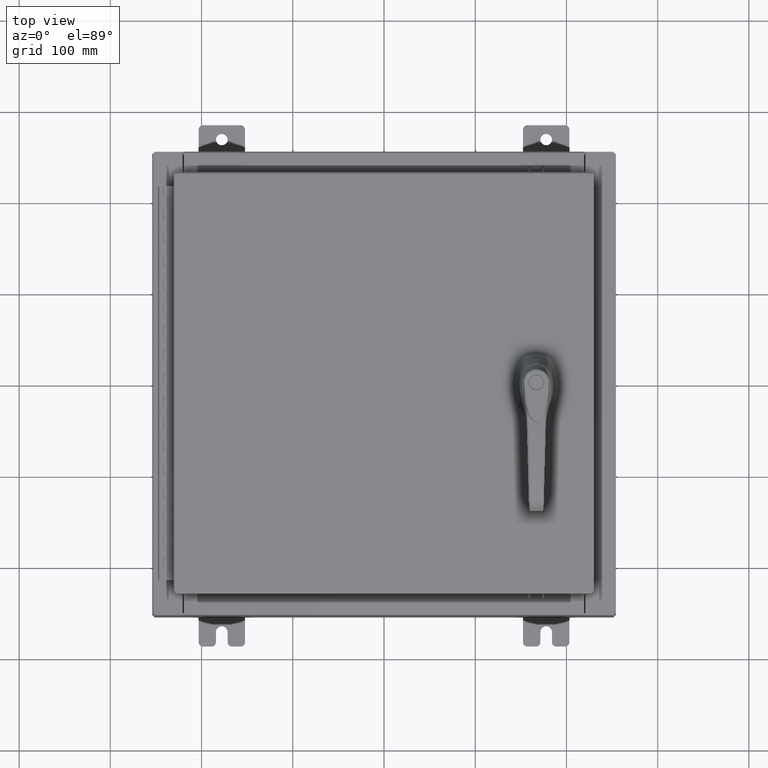
[diagram: clean part render]
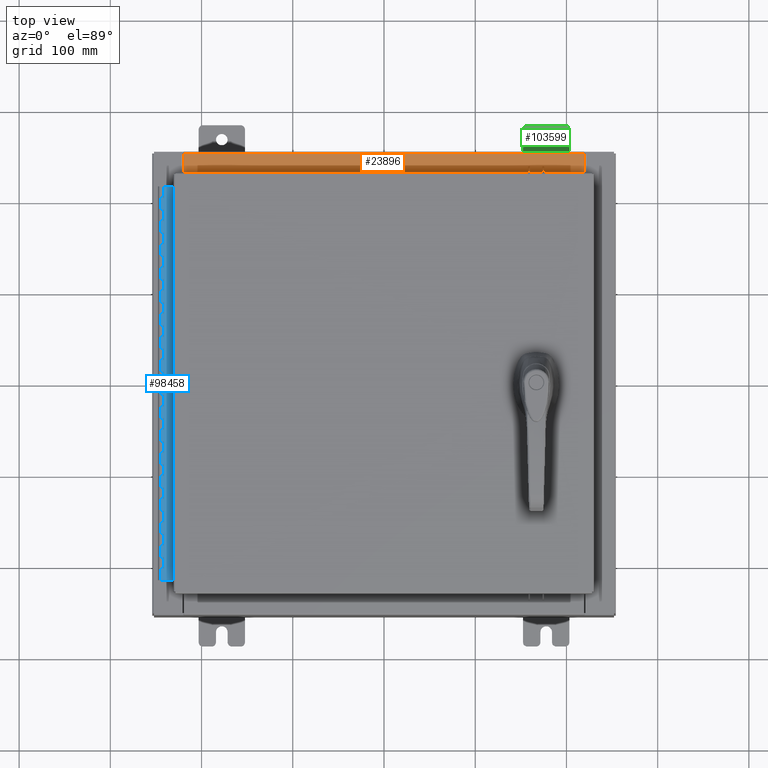
[diagram: same view with three faces highlighted in distinct colors, each labeled with its STEP entity id]
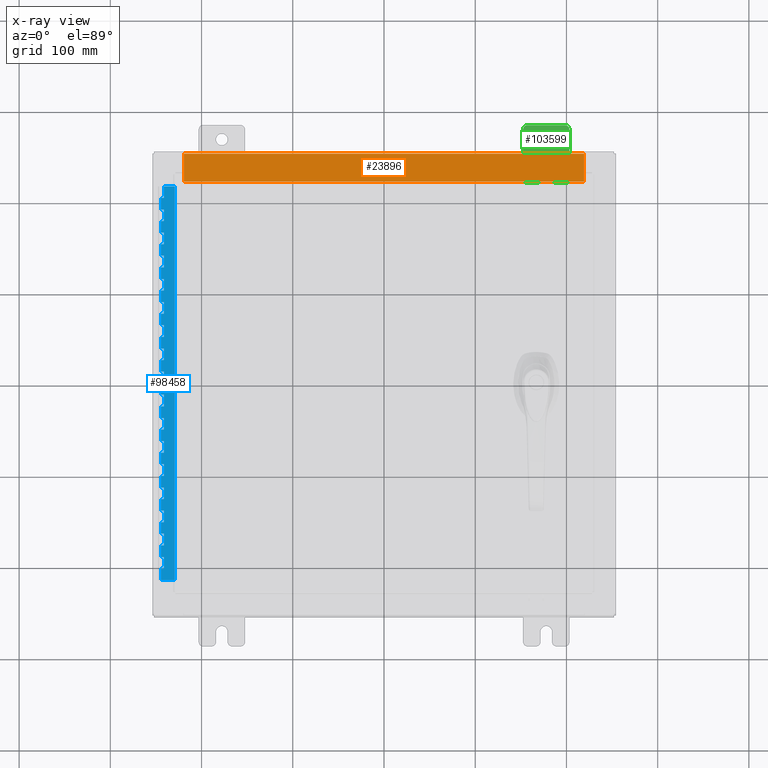
[diagram: x-ray of the same camera — body ghosted, the three highlighted faces saturated]
A machine part, top view with three faces highlighted in distinct colors.
The next image is the same camera in x-ray (body ghosted, the three faces saturated) — at least one of them is partly hidden behind the body in this view.
Their STEP definitions:

[orange] entity #23896 — the highlighted planar face has unit normal (0, 0, 1).
#1085 = FACE_OUTER_BOUND ( 'NONE', #47166, .T. ) ;
#1413 = VERTEX_POINT ( 'NONE', #47697 ) ;
#8284 = VECTOR ( 'NONE', #61445, 39.37007874015748100 ) ;
#10311 = CARTESIAN_POINT ( 'NONE',  ( -8.637200000000000000, -0.07469999999999973900, 3.000000000000000900 ) ) ;
#12944 = EDGE_CURVE ( 'NONE', #34291, #15818, #69920, .T. ) ;
#13962 = CARTESIAN_POINT ( 'NONE',  ( 8.637200000000000000, -1.287299999999999900, 3.000000000000005300 ) ) ;
#14028 = PLANE ( 'NONE',  #63778 ) ;
#14856 = ORIENTED_EDGE ( 'NONE', *, *, #12944, .T. ) ;
#15818 = VERTEX_POINT ( 'NONE', #99279 ) ;
#18794 = VECTOR ( 'NONE', #73695, 39.37007874015748100 ) ;
#22649 = DIRECTION ( 'NONE',  ( 0.0000000000000000000, 3.566381192773190000E-015, 1.000000000000000000 ) ) ;
#23896 = ADVANCED_FACE ( 'NONE', ( #1085 ), #14028, .T. ) ;
#31027 = CARTESIAN_POINT ( 'NONE',  ( -2.773851121247453900E-018, -0.08770000000000000000, 3.000000000000001300 ) ) ;
#31046 = LINE ( 'NONE', #10311, #8284 ) ;
#33048 = EDGE_CURVE ( 'NONE', #47662, #15818, #31046, .T. ) ;
#34291 = VERTEX_POINT ( 'NONE', #76085 ) ;
#36677 = LINE ( 'NONE', #85203, #74045 ) ;
#42161 = ORIENTED_EDGE ( 'NONE', *, *, #33048, .F. ) ;
#46929 = CARTESIAN_POINT ( 'NONE',  ( -8.637200000000000000, -1.287299999999999200, 3.000000000000005300 ) ) ;
#47166 = EDGE_LOOP ( 'NONE', ( #42161, #65543, #83262, #14856 ) ) ;
#47195 = VECTOR ( 'NONE', #90668, 39.37007874015748100 ) ;
#47662 = VERTEX_POINT ( 'NONE', #46929 ) ;
#47697 = CARTESIAN_POINT ( 'NONE',  ( 8.637200000000000000, -1.287299999999999900, 3.000000000000005300 ) ) ;
#61445 = DIRECTION ( 'NONE',  ( -0.0000000000000000000, 1.000000000000000000, -3.566381192773190000E-015 ) ) ;
#62125 = EDGE_CURVE ( 'NONE', #1413, #47662, #104276, .T. ) ;
#63778 = AXIS2_PLACEMENT_3D ( 'NONE', #107712, #22649, #82311 ) ;
#65543 = ORIENTED_EDGE ( 'NONE', *, *, #62125, .F. ) ;
#69920 = LINE ( 'NONE', #31027, #47195 ) ;
#73695 = DIRECTION ( 'NONE',  ( -1.000000000000000000, 0.0000000000000000000, 0.0000000000000000000 ) ) ;
#74045 = VECTOR ( 'NONE', #102362, 39.37007874015748100 ) ;
#76085 = CARTESIAN_POINT ( 'NONE',  ( 8.637200000000000000, -0.08769999999999965300, 3.000000000000000900 ) ) ;
#80705 = EDGE_CURVE ( 'NONE', #34291, #1413, #36677, .T. ) ;
#82311 = DIRECTION ( 'NONE',  ( 0.0000000000000000000, -1.000000000000000000, 3.566381192773190000E-015 ) ) ;
#83262 = ORIENTED_EDGE ( 'NONE', *, *, #80705, .F. ) ;
#85203 = CARTESIAN_POINT ( 'NONE',  ( 8.637200000000000000, -1.300299999999999800, 3.000000000000005300 ) ) ;
#90668 = DIRECTION ( 'NONE',  ( -1.000000000000000000, 3.162886113166609200E-017, -1.128005754888089100E-031 ) ) ;
#99279 = CARTESIAN_POINT ( 'NONE',  ( -8.637200000000000000, -0.08770000000000000000, 3.000000000000000900 ) ) ;
#102362 = DIRECTION ( 'NONE',  ( -0.0000000000000000000, -1.000000000000000000, 3.566381192773190000E-015 ) ) ;
#104276 = LINE ( 'NONE', #13962, #18794 ) ;
#107712 = CARTESIAN_POINT ( 'NONE',  ( 0.0000000000000000000, 1.069354855923099900E-014, 3.000000000000000900 ) ) ;

[blue] entity #98458 — the highlighted planar face has unit normal (-0, -0, 1).
#135 = VECTOR ( 'NONE', #54484, 39.37007874015748100 ) ;
#462 = LINE ( 'NONE', #92956, #20506 ) ;
#522 = VECTOR ( 'NONE', #54692, 39.37007874015748100 ) ;
#527 = VECTOR ( 'NONE', #104949, 39.37007874015748100 ) ;
#636 = CARTESIAN_POINT ( 'NONE',  ( -0.6869999999999982800, 0.5504999999999997700, -9.000000000000000000 ) ) ;
#935 = CARTESIAN_POINT ( 'NONE',  ( -0.6869999999999973900, 0.8004999999999995500, -8.000000000000000000 ) ) ;
#1162 = ORIENTED_EDGE ( 'NONE', *, *, #63929, .F. ) ;
#1710 = VERTEX_POINT ( 'NONE', #32771 ) ;
#1888 = DIRECTION ( 'NONE',  ( -3.389037039080723100E-015, -1.000000000000000000, 0.0000000000000000000 ) ) ;
#2101 = CARTESIAN_POINT ( 'NONE',  ( -0.6869999999999973900, 0.8004999999999995500, -14.99999999999999800 ) ) ;
#2190 = EDGE_CURVE ( 'NONE', #105749, #60536, #11558, .T. ) ;
#2315 = EDGE_CURVE ( 'NONE', #69447, #7857, #51561, .T. ) ;
#2409 = CARTESIAN_POINT ( 'NONE',  ( -0.6869999999999982800, 0.5504999999999997700, -4.500000000000000000 ) ) ;
#2440 = ORIENTED_EDGE ( 'NONE', *, *, #98465, .F. ) ;
#2537 = VERTEX_POINT ( 'NONE', #59224 ) ;
#2882 = EDGE_CURVE ( 'NONE', #64180, #44691, #87567, .T. ) ;
#3023 = VERTEX_POINT ( 'NONE', #79336 ) ;
#3283 = CARTESIAN_POINT ( 'NONE',  ( -0.6870000000000022800, -0.6245000000000003900, -17.00000000000000000 ) ) ;
#3555 = ORIENTED_EDGE ( 'NONE', *, *, #54391, .F. ) ;
#3590 = VECTOR ( 'NONE', #5275, 39.37007874015748100 ) ;
#3894 = CARTESIAN_POINT ( 'NONE',  ( -0.6869999999999978300, 0.6754999999999996600, -4.000000000000000000 ) ) ;
#3989 = EDGE_CURVE ( 'NONE', #72331, #20191, #48681, .T. ) ;
#4295 = EDGE_CURVE ( 'NONE', #91360, #72609, #35360, .T. ) ;
#4303 = CARTESIAN_POINT ( 'NONE',  ( -0.6869999999999973900, 0.8004999999999995500, -12.49999999999999800 ) ) ;
#4370 = LINE ( 'NONE', #20343, #39040 ) ;
#4386 = CARTESIAN_POINT ( 'NONE',  ( -0.6869999999999973900, 0.8004999999999995500, -1.000000000000000000 ) ) ;
#4582 = VERTEX_POINT ( 'NONE', #21619 ) ;
#4593 = ORIENTED_EDGE ( 'NONE', *, *, #61196, .F. ) ;
#4777 = ORIENTED_EDGE ( 'NONE', *, *, #63964, .F. ) ;
#5031 = ORIENTED_EDGE ( 'NONE', *, *, #37608, .F. ) ;
#5275 = DIRECTION ( 'NONE',  ( -3.389037039080723100E-015, -1.000000000000000000, 0.0000000000000000000 ) ) ;
#5659 = VECTOR ( 'NONE', #34615, 39.37007874015748100 ) ;
#6200 = DIRECTION ( 'NONE',  ( 0.0000000000000000000, -0.0000000000000000000, -1.000000000000000000 ) ) ;
#6936 = EDGE_CURVE ( 'NONE', #1710, #25331, #34584, .T. ) ;
#7097 = EDGE_CURVE ( 'NONE', #21002, #33218, #91962, .T. ) ;
#7544 = DIRECTION ( 'NONE',  ( 1.000000000000000000, -3.369016658928398200E-015, 0.0000000000000000000 ) ) ;
#7656 = CARTESIAN_POINT ( 'NONE',  ( -0.6869999999999982800, 0.5504999999999997700, -11.50000000000000000 ) ) ;
#7769 = LINE ( 'NONE', #29563, #25153 ) ;
#7857 = VERTEX_POINT ( 'NONE', #3894 ) ;
#8048 = LINE ( 'NONE', #99553, #28122 ) ;
#8353 = DIRECTION ( 'NONE',  ( 0.0000000000000000000, -0.0000000000000000000, -1.000000000000000000 ) ) ;
#8421 = DIRECTION ( 'NONE',  ( 3.389037039080723100E-015, 1.000000000000000000, -0.0000000000000000000 ) ) ;
#8607 = VERTEX_POINT ( 'NONE', #104427 ) ;
#8736 = ORIENTED_EDGE ( 'NONE', *, *, #7097, .T. ) ;
#8772 = DIRECTION ( 'NONE',  ( 3.389037039080723100E-015, 1.000000000000000000, -0.0000000000000000000 ) ) ;
#8821 = CARTESIAN_POINT ( 'NONE',  ( -0.6869999999999973900, 0.8004999999999995500, -11.00000000000000000 ) ) ;
#8956 = LINE ( 'NONE', #48882, #67773 ) ;
#8969 = VECTOR ( 'NONE', #89377, 39.37007874015748100 ) ;
#9147 = VECTOR ( 'NONE', #58650, 39.37007874015748100 ) ;
#9213 = CARTESIAN_POINT ( 'NONE',  ( -0.6869999999999973900, 0.8004999999999995500, -7.000000000000000000 ) ) ;
#9255 = VECTOR ( 'NONE', #32369, 39.37007874015748100 ) ;
#9406 = DIRECTION ( 'NONE',  ( 0.0000000000000000000, -0.0000000000000000000, -1.000000000000000000 ) ) ;
#9683 = LINE ( 'NONE', #4303, #27084 ) ;
#9707 = VERTEX_POINT ( 'NONE', #60459 ) ;
#10333 = LINE ( 'NONE', #4386, #75762 ) ;
#10354 = CARTESIAN_POINT ( 'NONE',  ( -0.6869999999999973900, 0.8004999999999995500, -0.5000000000000000000 ) ) ;
#10365 = DIRECTION ( 'NONE',  ( 0.0000000000000000000, -0.0000000000000000000, -1.000000000000000000 ) ) ;
#10669 = VERTEX_POINT ( 'NONE', #55037 ) ;
#10744 = CARTESIAN_POINT ( 'NONE',  ( -0.6869999999999978300, 0.6754999999999996600, -14.49999999999999800 ) ) ;
#11027 = ORIENTED_EDGE ( 'NONE', *, *, #90903, .T. ) ;
#11038 = CARTESIAN_POINT ( 'NONE',  ( -0.6869999999999978300, 0.6754999999999996600, -17.00000000000000000 ) ) ;
#11082 = CARTESIAN_POINT ( 'NONE',  ( -0.6869999999999982800, 0.5504999999999997700, -13.50000000000000000 ) ) ;
#11391 = CARTESIAN_POINT ( 'NONE',  ( -0.6869999999999973900, 0.8004999999999995500, -13.50000000000000000 ) ) ;
#11520 = CARTESIAN_POINT ( 'NONE',  ( -0.6869999999999982800, 0.5504999999999997700, -5.500000000000000000 ) ) ;
#11558 = LINE ( 'NONE', #97754, #99669 ) ;
#11758 = EDGE_CURVE ( 'NONE', #10669, #20421, #46015, .T. ) ;
#11921 = VERTEX_POINT ( 'NONE', #56283 ) ;
#11941 = DIRECTION ( 'NONE',  ( 3.389037039080723100E-015, 1.000000000000000000, -0.0000000000000000000 ) ) ;
#12327 = DIRECTION ( 'NONE',  ( -3.389037039080723100E-015, -1.000000000000000000, 0.0000000000000000000 ) ) ;
#12381 = VERTEX_POINT ( 'NONE', #86450 ) ;
#12472 = VECTOR ( 'NONE', #98889, 39.37007874015748100 ) ;
#12629 = EDGE_CURVE ( 'NONE', #12381, #95921, #48557, .T. ) ;
#12644 = VECTOR ( 'NONE', #1888, 39.37007874015748100 ) ;
#12663 = VERTEX_POINT ( 'NONE', #46470 ) ;
#12683 = LINE ( 'NONE', #11391, #35405 ) ;
#13226 = LINE ( 'NONE', #935, #58610 ) ;
#13551 = LINE ( 'NONE', #84646, #101656 ) ;
#14625 = LINE ( 'NONE', #83447, #9255 ) ;
#14779 = CARTESIAN_POINT ( 'NONE',  ( -0.6869999999999982800, 0.5504999999999997700, -8.500000000000000000 ) ) ;
#14837 = VECTOR ( 'NONE', #64797, 39.37007874015748100 ) ;
#15112 = CARTESIAN_POINT ( 'NONE',  ( -0.6869999999999982800, 0.5504999999999997700, -6.499999999999999100 ) ) ;
#15669 = CARTESIAN_POINT ( 'NONE',  ( -0.6869999999999978300, 0.6754999999999996600, -10.50000000000000000 ) ) ;
#15756 = LINE ( 'NONE', #33112, #58473 ) ;
#15834 = VERTEX_POINT ( 'NONE', #22819 ) ;
#16247 = ORIENTED_EDGE ( 'NONE', *, *, #28249, .F. ) ;
#16573 = LINE ( 'NONE', #71826, #104740 ) ;
#16765 = DIRECTION ( 'NONE',  ( -3.389037039080723100E-015, -1.000000000000000000, 0.0000000000000000000 ) ) ;
#16810 = VERTEX_POINT ( 'NONE', #42519 ) ;
#17180 = EDGE_CURVE ( 'NONE', #52398, #7857, #8048, .T. ) ;
#17956 = VERTEX_POINT ( 'NONE', #98335 ) ;
#17990 = CARTESIAN_POINT ( 'NONE',  ( -0.6869999999999982800, 0.5504999999999997700, -1.499999999999999800 ) ) ;
#18585 = LINE ( 'NONE', #25617, #84011 ) ;
#18634 = CARTESIAN_POINT ( 'NONE',  ( -0.6869999999999978300, 0.6754999999999996600, -17.00000000000000000 ) ) ;
#19223 = ORIENTED_EDGE ( 'NONE', *, *, #38174, .F. ) ;
#19488 = VECTOR ( 'NONE', #104412, 39.37007874015748100 ) ;
#19520 = ORIENTED_EDGE ( 'NONE', *, *, #20275, .F. ) ;
#20191 = VERTEX_POINT ( 'NONE', #82124 ) ;
#20275 = EDGE_CURVE ( 'NONE', #25351, #39577, #101606, .T. ) ;
#20343 = CARTESIAN_POINT ( 'NONE',  ( -0.6869999999999973900, 0.8004999999999995500, -10.50000000000000000 ) ) ;
#20421 = VERTEX_POINT ( 'NONE', #29494 ) ;
#20484 = VERTEX_POINT ( 'NONE', #64506 ) ;
#20506 = VECTOR ( 'NONE', #67619, 39.37007874015748100 ) ;
#20771 = CARTESIAN_POINT ( 'NONE',  ( -0.6869999999999978300, 0.6754999999999996600, -17.00000000000000000 ) ) ;
#20910 = DIRECTION ( 'NONE',  ( 0.0000000000000000000, -0.0000000000000000000, -1.000000000000000000 ) ) ;
#21002 = VERTEX_POINT ( 'NONE', #88275 ) ;
#21260 = VECTOR ( 'NONE', #6200, 39.37007874015748100 ) ;
#21547 = VECTOR ( 'NONE', #96107, 39.37007874015748100 ) ;
#21619 = CARTESIAN_POINT ( 'NONE',  ( -0.6869999999999978300, 0.6754999999999996600, -7.499999999999999100 ) ) ;
#21730 = VECTOR ( 'NONE', #69018, 39.37007874015748100 ) ;
#22237 = ORIENTED_EDGE ( 'NONE', *, *, #88902, .T. ) ;
#22470 = CARTESIAN_POINT ( 'NONE',  ( -0.6869999999999982800, 0.5504999999999997700, -3.500000000000000000 ) ) ;
#22763 = DIRECTION ( 'NONE',  ( 0.0000000000000000000, 0.0000000000000000000, 1.000000000000000000 ) ) ;
#22819 = CARTESIAN_POINT ( 'NONE',  ( -0.6869999999999978300, 0.6754999999999996600, -16.50000000000000000 ) ) ;
#23126 = CARTESIAN_POINT ( 'NONE',  ( -0.6869999999999973900, 0.8004999999999995500, -16.50000000000000000 ) ) ;
#23299 = LINE ( 'NONE', #44525, #108738 ) ;
#24167 = CARTESIAN_POINT ( 'NONE',  ( -0.6869999999999982800, 0.5504999999999997700, -5.500000000000000000 ) ) ;
#25011 = DIRECTION ( 'NONE',  ( 0.0000000000000000000, 0.0000000000000000000, 1.000000000000000000 ) ) ;
#25153 = VECTOR ( 'NONE', #12327, 39.37007874015748100 ) ;
#25202 = VERTEX_POINT ( 'NONE', #55110 ) ;
#25331 = VERTEX_POINT ( 'NONE', #100619 ) ;
#25351 = VERTEX_POINT ( 'NONE', #24167 ) ;
#25617 = CARTESIAN_POINT ( 'NONE',  ( -0.6869999999999973900, 0.8004999999999995500, -2.999999999999999600 ) ) ;
#25715 = VECTOR ( 'NONE', #69756, 39.37007874015748100 ) ;
#25889 = EDGE_CURVE ( 'NONE', #2537, #25351, #26264, .T. ) ;
#26140 = LINE ( 'NONE', #104050, #68859 ) ;
#26249 = LINE ( 'NONE', #89239, #35556 ) ;
#26264 = LINE ( 'NONE', #64937, #3590 ) ;
#26306 = ORIENTED_EDGE ( 'NONE', *, *, #12629, .T. ) ;
#26597 = LINE ( 'NONE', #17990, #69293 ) ;
#26611 = VERTEX_POINT ( 'NONE', #59557 ) ;
#26814 = VERTEX_POINT ( 'NONE', #104714 ) ;
#26969 = VECTOR ( 'NONE', #106246, 39.37007874015748100 ) ;
#27084 = VECTOR ( 'NONE', #89347, 39.37007874015748100 ) ;
#27223 = CARTESIAN_POINT ( 'NONE',  ( -0.6869999999999982800, 0.5504999999999997700, -2.999999999999999600 ) ) ;
#27454 = LINE ( 'NONE', #30740, #92805 ) ;
#27916 = AXIS2_PLACEMENT_3D ( 'NONE', #58647, #7544, #67265 ) ;
#28122 = VECTOR ( 'NONE', #74201, 39.37007874015748100 ) ;
#28249 = EDGE_CURVE ( 'NONE', #1710, #9707, #38061, .T. ) ;
#28641 = LINE ( 'NONE', #53779, #527 ) ;
#28767 = VECTOR ( 'NONE', #28829, 39.37007874015748100 ) ;
#28829 = DIRECTION ( 'NONE',  ( 0.0000000000000000000, 0.0000000000000000000, 1.000000000000000000 ) ) ;
#28997 = CARTESIAN_POINT ( 'NONE',  ( -0.6869999999999978300, 0.6754999999999996600, -2.000000000000000000 ) ) ;
#29320 = VERTEX_POINT ( 'NONE', #84430 ) ;
#29422 = CARTESIAN_POINT ( 'NONE',  ( -0.6869999999999982800, 0.5504999999999997700, -1.499999999999999800 ) ) ;
#29494 = CARTESIAN_POINT ( 'NONE',  ( -0.6869999999999978300, 0.6754999999999996600, -14.00000000000000000 ) ) ;
#29563 = CARTESIAN_POINT ( 'NONE',  ( -0.6869999999999973900, 0.8004999999999995500, -9.500000000000000000 ) ) ;
#29573 = DIRECTION ( 'NONE',  ( -3.389037039080723100E-015, -1.000000000000000000, 0.0000000000000000000 ) ) ;
#30740 = CARTESIAN_POINT ( 'NONE',  ( -0.6869999999999978300, 0.6754999999999996600, -17.00000000000000000 ) ) ;
#30823 = DIRECTION ( 'NONE',  ( -3.389037039080723100E-015, -1.000000000000000000, 0.0000000000000000000 ) ) ;
#31059 = LINE ( 'NONE', #9213, #5659 ) ;
#31102 = CARTESIAN_POINT ( 'NONE',  ( -0.6869999999999973900, 0.8004999999999995500, -6.499999999999999100 ) ) ;
#31199 = ORIENTED_EDGE ( 'NONE', *, *, #51307, .F. ) ;
#31396 = EDGE_CURVE ( 'NONE', #64180, #29320, #462, .T. ) ;
#31402 = ORIENTED_EDGE ( 'NONE', *, *, #87074, .F. ) ;
#31688 = VERTEX_POINT ( 'NONE', #89955 ) ;
#31940 = VECTOR ( 'NONE', #37610, 39.37007874015748100 ) ;
#31960 = VECTOR ( 'NONE', #16765, 39.37007874015748100 ) ;
#32369 = DIRECTION ( 'NONE',  ( 0.0000000000000000000, 0.0000000000000000000, 1.000000000000000000 ) ) ;
#32771 = CARTESIAN_POINT ( 'NONE',  ( -0.6869999999999998300, 0.07549999999999991400, -17.00000000000000000 ) ) ;
#33112 = CARTESIAN_POINT ( 'NONE',  ( -0.6869999999999978300, 0.6754999999999996600, -17.00000000000000000 ) ) ;
#33142 = ORIENTED_EDGE ( 'NONE', *, *, #59140, .F. ) ;
#33162 = ORIENTED_EDGE ( 'NONE', *, *, #77657, .F. ) ;
#33218 = VERTEX_POINT ( 'NONE', #28997 ) ;
#33250 = VECTOR ( 'NONE', #44993, 39.37007874015748100 ) ;
#33357 = ORIENTED_EDGE ( 'NONE', *, *, #3989, .T. ) ;
#33382 = DIRECTION ( 'NONE',  ( 3.389037039080723100E-015, 1.000000000000000000, -0.0000000000000000000 ) ) ;
#33530 = ORIENTED_EDGE ( 'NONE', *, *, #2315, .F. ) ;
#33592 = DIRECTION ( 'NONE',  ( 0.0000000000000000000, -0.0000000000000000000, -1.000000000000000000 ) ) ;
#34044 = EDGE_CURVE ( 'NONE', #94071, #105749, #7769, .T. ) ;
#34174 = VECTOR ( 'NONE', #68200, 39.37007874015748100 ) ;
#34532 = ORIENTED_EDGE ( 'NONE', *, *, #48883, .F. ) ;
#34544 = VERTEX_POINT ( 'NONE', #43948 ) ;
#34554 = LINE ( 'NONE', #41509, #9147 ) ;
#34584 = LINE ( 'NONE', #3283, #31940 ) ;
#34615 = DIRECTION ( 'NONE',  ( 3.389037039080723100E-015, 1.000000000000000000, -0.0000000000000000000 ) ) ;
#34638 = EDGE_CURVE ( 'NONE', #62515, #12663, #63784, .T. ) ;
#34858 = EDGE_CURVE ( 'NONE', #34544, #82427, #10333, .T. ) ;
#34871 = EDGE_CURVE ( 'NONE', #93606, #26611, #53009, .T. ) ;
#35360 = LINE ( 'NONE', #31102, #12644 ) ;
#35405 = VECTOR ( 'NONE', #88988, 39.37007874015748100 ) ;
#35556 = VECTOR ( 'NONE', #46669, 39.37007874015748100 ) ;
#35698 = ORIENTED_EDGE ( 'NONE', *, *, #68049, .F. ) ;
#35964 = DIRECTION ( 'NONE',  ( 3.389037039080723100E-015, 1.000000000000000000, -0.0000000000000000000 ) ) ;
#36002 = ORIENTED_EDGE ( 'NONE', *, *, #106757, .F. ) ;
#36165 = CARTESIAN_POINT ( 'NONE',  ( -0.6869999999999978300, 0.6754999999999996600, -17.00000000000000000 ) ) ;
#36401 = ORIENTED_EDGE ( 'NONE', *, *, #69633, .F. ) ;
#36567 = VERTEX_POINT ( 'NONE', #636 ) ;
#36744 = CARTESIAN_POINT ( 'NONE',  ( -0.6869999999999978300, 0.6754999999999996600, -0.5000000000000000000 ) ) ;
#37003 = CARTESIAN_POINT ( 'NONE',  ( -0.6869999999999978300, 0.6754999999999996600, -9.500000000000000000 ) ) ;
#37056 = ORIENTED_EDGE ( 'NONE', *, *, #17180, .T. ) ;
#37608 = EDGE_CURVE ( 'NONE', #89329, #69832, #12683, .T. ) ;
#37610 = DIRECTION ( 'NONE',  ( 3.369016658928398200E-015, 1.000000000000000000, 0.0000000000000000000 ) ) ;
#37693 = EDGE_CURVE ( 'NONE', #21002, #73934, #95459, .T. ) ;
#37986 = CARTESIAN_POINT ( 'NONE',  ( -0.6869999999999973900, 0.8004999999999995500, -5.000000000000000000 ) ) ;
#38061 = LINE ( 'NONE', #57395, #75393 ) ;
#38174 = EDGE_CURVE ( 'NONE', #20484, #26611, #99416, .T. ) ;
#38881 = VERTEX_POINT ( 'NONE', #109009 ) ;
#39040 = VECTOR ( 'NONE', #105792, 39.37007874015748100 ) ;
#39181 = CARTESIAN_POINT ( 'NONE',  ( -0.6869999999999982800, 0.5504999999999997700, -4.500000000000000000 ) ) ;
#39247 = LINE ( 'NONE', #41715, #64617 ) ;
#39577 = VERTEX_POINT ( 'NONE', #101746 ) ;
#39605 = DIRECTION ( 'NONE',  ( 0.0000000000000000000, -0.0000000000000000000, -1.000000000000000000 ) ) ;
#40496 = CARTESIAN_POINT ( 'NONE',  ( -0.6869999999999973900, 0.8004999999999995500, -11.99999999999999800 ) ) ;
#40861 = DIRECTION ( 'NONE',  ( 0.0000000000000000000, -0.0000000000000000000, -1.000000000000000000 ) ) ;
#41300 = ORIENTED_EDGE ( 'NONE', *, *, #53953, .T. ) ;
#41509 = CARTESIAN_POINT ( 'NONE',  ( -0.6869999999999982800, 0.5504999999999997700, -12.49999999999999800 ) ) ;
#41664 = DIRECTION ( 'NONE',  ( 0.0000000000000000000, 0.0000000000000000000, 1.000000000000000000 ) ) ;
#41715 = CARTESIAN_POINT ( 'NONE',  ( -0.6869999999999978300, 0.6754999999999996600, -17.00000000000000000 ) ) ;
#41721 = ORIENTED_EDGE ( 'NONE', *, *, #25889, .F. ) ;
#42013 = EDGE_CURVE ( 'NONE', #15834, #48084, #87132, .T. ) ;
#42155 = VECTOR ( 'NONE', #58505, 39.37007874015748100 ) ;
#42519 = CARTESIAN_POINT ( 'NONE',  ( -0.6869999999999978300, 0.6754999999999996600, -10.00000000000000000 ) ) ;
#42673 = VECTOR ( 'NONE', #104442, 39.37007874015748100 ) ;
#42937 = CARTESIAN_POINT ( 'NONE',  ( -0.6869999999999978300, 0.6754999999999996600, -17.00000000000000000 ) ) ;
#43310 = CARTESIAN_POINT ( 'NONE',  ( -0.6869999999999982800, 0.5504999999999997700, -6.499999999999999100 ) ) ;
#43453 = ORIENTED_EDGE ( 'NONE', *, *, #60340, .F. ) ;
#43845 = VERTEX_POINT ( 'NONE', #2409 ) ;
#43948 = CARTESIAN_POINT ( 'NONE',  ( -0.6869999999999982800, 0.5504999999999997700, -1.000000000000000000 ) ) ;
#44139 = ORIENTED_EDGE ( 'NONE', *, *, #80931, .F. ) ;
#44287 = LINE ( 'NONE', #65678, #107057 ) ;
#44332 = LINE ( 'NONE', #2101, #107094 ) ;
#44363 = CARTESIAN_POINT ( 'NONE',  ( -0.6869999999999973900, 0.8004999999999995500, -2.000000000000000000 ) ) ;
#44418 = ORIENTED_EDGE ( 'NONE', *, *, #42013, .T. ) ;
#44525 = CARTESIAN_POINT ( 'NONE',  ( -0.6869999999999973900, 0.8004999999999995500, -16.00000000000000000 ) ) ;
#44691 = VERTEX_POINT ( 'NONE', #66653 ) ;
#44993 = DIRECTION ( 'NONE',  ( 0.0000000000000000000, 0.0000000000000000000, 1.000000000000000000 ) ) ;
#45364 = CARTESIAN_POINT ( 'NONE',  ( -0.6869999999999978300, 0.6754999999999996600, -16.00000000000000000 ) ) ;
#45373 = LINE ( 'NONE', #36165, #42673 ) ;
#46015 = LINE ( 'NONE', #71679, #91433 ) ;
#46047 = CARTESIAN_POINT ( 'NONE',  ( -0.6869999999999973900, 0.8004999999999995500, -14.49999999999999800 ) ) ;
#46384 = DIRECTION ( 'NONE',  ( 0.0000000000000000000, 0.0000000000000000000, 1.000000000000000000 ) ) ;
#46470 = CARTESIAN_POINT ( 'NONE',  ( -0.6869999999999982800, 0.5504999999999997700, -8.000000000000000000 ) ) ;
#46508 = CARTESIAN_POINT ( 'NONE',  ( -0.6869999999999978300, 0.6754999999999996600, -11.50000000000000000 ) ) ;
#46669 = DIRECTION ( 'NONE',  ( 3.389037039080723100E-015, 1.000000000000000000, -0.0000000000000000000 ) ) ;
#46870 = VECTOR ( 'NONE', #79812, 39.37007874015748100 ) ;
#47229 = CARTESIAN_POINT ( 'NONE',  ( -0.6869999999999978300, 0.6754999999999996600, -17.00000000000000000 ) ) ;
#47405 = EDGE_CURVE ( 'NONE', #94071, #92383, #48347, .T. ) ;
#47939 = ORIENTED_EDGE ( 'NONE', *, *, #68397, .F. ) ;
#48033 = EDGE_CURVE ( 'NONE', #3023, #95921, #44332, .T. ) ;
#48084 = VERTEX_POINT ( 'NONE', #45364 ) ;
#48347 = LINE ( 'NONE', #18634, #25715 ) ;
#48396 = VERTEX_POINT ( 'NONE', #29422 ) ;
#48557 = LINE ( 'NONE', #20771, #522 ) ;
#48681 = LINE ( 'NONE', #94464, #28767 ) ;
#48882 = CARTESIAN_POINT ( 'NONE',  ( -0.6869999999999973900, 0.8004999999999995500, -1.499999999999999800 ) ) ;
#48883 = EDGE_CURVE ( 'NONE', #12381, #74910, #69610, .T. ) ;
#49003 = ORIENTED_EDGE ( 'NONE', *, *, #64619, .F. ) ;
#49222 = ORIENTED_EDGE ( 'NONE', *, *, #87574, .T. ) ;
#49993 = VERTEX_POINT ( 'NONE', #27223 ) ;
#50056 = CARTESIAN_POINT ( 'NONE',  ( -0.6869999999999982800, 0.5504999999999997700, -2.500000000000000000 ) ) ;
#50229 = DIRECTION ( 'NONE',  ( 0.0000000000000000000, 0.0000000000000000000, 1.000000000000000000 ) ) ;
#50305 = ORIENTED_EDGE ( 'NONE', *, *, #2190, .F. ) ;
#50323 = VECTOR ( 'NONE', #89800, 39.37007874015748100 ) ;
#50391 = CARTESIAN_POINT ( 'NONE',  ( -0.6869999999999973900, 0.8004999999999995500, -12.99999999999999800 ) ) ;
#50697 = CARTESIAN_POINT ( 'NONE',  ( -0.6869999999999973900, 0.8004999999999995500, -4.500000000000000000 ) ) ;
#51210 = ORIENTED_EDGE ( 'NONE', *, *, #34871, .T. ) ;
#51307 = EDGE_CURVE ( 'NONE', #52398, #43845, #85327, .T. ) ;
#51427 = ORIENTED_EDGE ( 'NONE', *, *, #2882, .F. ) ;
#51451 = EDGE_CURVE ( 'NONE', #48396, #76492, #26597, .T. ) ;
#51471 = DIRECTION ( 'NONE',  ( 0.0000000000000000000, 0.0000000000000000000, 1.000000000000000000 ) ) ;
#51561 = LINE ( 'NONE', #65479, #97028 ) ;
#51564 = ORIENTED_EDGE ( 'NONE', *, *, #34044, .F. ) ;
#52186 = CARTESIAN_POINT ( 'NONE',  ( -0.6869999999999978300, 0.6754999999999996600, -17.00000000000000000 ) ) ;
#52235 = LINE ( 'NONE', #37986, #26969 ) ;
#52398 = VERTEX_POINT ( 'NONE', #59278 ) ;
#52678 = CARTESIAN_POINT ( 'NONE',  ( -0.6869999999999978300, 0.6754999999999996600, -6.499999999999999100 ) ) ;
#52797 = VERTEX_POINT ( 'NONE', #76722 ) ;
#52877 = ORIENTED_EDGE ( 'NONE', *, *, #4295, .F. ) ;
#53009 = LINE ( 'NONE', #47229, #50323 ) ;
#53022 = CARTESIAN_POINT ( 'NONE',  ( -0.6869999999999982800, 0.5504999999999997700, -7.499999999999999100 ) ) ;
#53083 = EDGE_CURVE ( 'NONE', #91360, #8607, #101300, .T. ) ;
#53267 = CARTESIAN_POINT ( 'NONE',  ( -0.6869999999999978300, 0.6754999999999996600, -7.000000000000000000 ) ) ;
#53406 = VERTEX_POINT ( 'NONE', #71383 ) ;
#53589 = ORIENTED_EDGE ( 'NONE', *, *, #81563, .T. ) ;
#53609 = VERTEX_POINT ( 'NONE', #15669 ) ;
#53779 = CARTESIAN_POINT ( 'NONE',  ( -0.6869999999999978300, 0.6754999999999996600, -17.00000000000000000 ) ) ;
#53953 = EDGE_CURVE ( 'NONE', #89329, #90299, #15756, .T. ) ;
#54391 = EDGE_CURVE ( 'NONE', #96846, #69447, #57059, .T. ) ;
#54484 = DIRECTION ( 'NONE',  ( -3.389037039080723100E-015, -1.000000000000000000, 0.0000000000000000000 ) ) ;
#54614 = ORIENTED_EDGE ( 'NONE', *, *, #60158, .F. ) ;
#54692 = DIRECTION ( 'NONE',  ( 0.0000000000000000000, 0.0000000000000000000, 1.000000000000000000 ) ) ;
#55037 = CARTESIAN_POINT ( 'NONE',  ( -0.6869999999999982800, 0.5504999999999997700, -14.00000000000000000 ) ) ;
#55110 = CARTESIAN_POINT ( 'NONE',  ( -0.6869999999999978300, 0.6754999999999996600, -3.500000000000000000 ) ) ;
#55438 = CARTESIAN_POINT ( 'NONE',  ( -0.6869999999999978300, 0.6754999999999996600, -17.00000000000000000 ) ) ;
#56196 = CARTESIAN_POINT ( 'NONE',  ( -0.6869999999999973900, 0.8004999999999995500, -3.500000000000000000 ) ) ;
#56283 = CARTESIAN_POINT ( 'NONE',  ( -0.6869999999999978300, 0.6754999999999996600, -1.499999999999999800 ) ) ;
#57046 = EDGE_CURVE ( 'NONE', #4582, #62515, #84821, .T. ) ;
#57059 = LINE ( 'NONE', #22470, #79801 ) ;
#57395 = CARTESIAN_POINT ( 'NONE',  ( -0.6869999999999998300, 0.07549999999999991400, -17.00000000000000000 ) ) ;
#58473 = VECTOR ( 'NONE', #41664, 39.37007874015748100 ) ;
#58505 = DIRECTION ( 'NONE',  ( -3.389037039080723100E-015, -1.000000000000000000, 0.0000000000000000000 ) ) ;
#58599 = ORIENTED_EDGE ( 'NONE', *, *, #86456, .F. ) ;
#58610 = VECTOR ( 'NONE', #94588, 39.37007874015748100 ) ;
#58647 = CARTESIAN_POINT ( 'NONE',  ( -0.6870000000000022800, -0.6245000000000003900, -17.00000000000000000 ) ) ;
#58650 = DIRECTION ( 'NONE',  ( 0.0000000000000000000, -0.0000000000000000000, -1.000000000000000000 ) ) ;
#59140 = EDGE_CURVE ( 'NONE', #43845, #98470, #80576, .T. ) ;
#59224 = CARTESIAN_POINT ( 'NONE',  ( -0.6869999999999978300, 0.6754999999999996600, -5.500000000000000000 ) ) ;
#59278 = CARTESIAN_POINT ( 'NONE',  ( -0.6869999999999978300, 0.6754999999999996600, -4.500000000000000000 ) ) ;
#59557 = CARTESIAN_POINT ( 'NONE',  ( -0.6869999999999978300, 0.6754999999999996600, -11.99999999999999800 ) ) ;
#59978 = LINE ( 'NONE', #44363, #105413 ) ;
#60158 = EDGE_CURVE ( 'NONE', #93606, #31688, #9683, .T. ) ;
#60340 = EDGE_CURVE ( 'NONE', #53609, #69757, #4370, .T. ) ;
#60459 = CARTESIAN_POINT ( 'NONE',  ( -0.6869999999999998300, 0.07549999999999991400, 0.0000000000000000000 ) ) ;
#60536 = VERTEX_POINT ( 'NONE', #100844 ) ;
#61196 = EDGE_CURVE ( 'NONE', #9707, #29320, #44287, .T. ) ;
#61325 = CARTESIAN_POINT ( 'NONE',  ( -0.6869999999999978300, 0.6754999999999996600, -8.000000000000000000 ) ) ;
#61354 = EDGE_CURVE ( 'NONE', #53406, #25331, #13551, .T. ) ;
#61514 = VECTOR ( 'NONE', #105796, 39.37007874015748100 ) ;
#61767 = CARTESIAN_POINT ( 'NONE',  ( -0.6869999999999978300, 0.6754999999999996600, -12.49999999999999800 ) ) ;
#61802 = EDGE_CURVE ( 'NONE', #25202, #96846, #105659, .T. ) ;
#61970 = CARTESIAN_POINT ( 'NONE',  ( -0.6869999999999978300, 0.6754999999999996600, -1.000000000000000000 ) ) ;
#62152 = VECTOR ( 'NONE', #29573, 39.37007874015748100 ) ;
#62371 = VECTOR ( 'NONE', #20910, 39.37007874015748100 ) ;
#62515 = VERTEX_POINT ( 'NONE', #53022 ) ;
#62637 = LINE ( 'NONE', #110601, #105358 ) ;
#63099 = LINE ( 'NONE', #42937, #105821 ) ;
#63124 = EDGE_CURVE ( 'NONE', #72331, #84414, #104159, .T. ) ;
#63169 = FACE_OUTER_BOUND ( 'NONE', #107162, .T. ) ;
#63290 = CARTESIAN_POINT ( 'NONE',  ( -0.6869999999999978300, 0.6754999999999996600, -12.99999999999999800 ) ) ;
#63364 = CARTESIAN_POINT ( 'NONE',  ( -0.6869999999999982800, 0.5504999999999997700, -16.00000000000000000 ) ) ;
#63479 = EDGE_CURVE ( 'NONE', #72590, #83997, #45373, .T. ) ;
#63490 = VERTEX_POINT ( 'NONE', #53267 ) ;
#63745 = ORIENTED_EDGE ( 'NONE', *, *, #48033, .F. ) ;
#63770 = EDGE_CURVE ( 'NONE', #2537, #83333, #14625, .T. ) ;
#63784 = LINE ( 'NONE', #95802, #109176 ) ;
#63929 = EDGE_CURVE ( 'NONE', #60536, #16810, #89375, .T. ) ;
#63964 = EDGE_CURVE ( 'NONE', #49993, #17956, #18585, .T. ) ;
#64002 = ORIENTED_EDGE ( 'NONE', *, *, #61354, .F. ) ;
#64068 = DIRECTION ( 'NONE',  ( 0.0000000000000000000, 0.0000000000000000000, 1.000000000000000000 ) ) ;
#64073 = DIRECTION ( 'NONE',  ( 3.389037039080723100E-015, 1.000000000000000000, -0.0000000000000000000 ) ) ;
#64114 = EDGE_CURVE ( 'NONE', #12663, #83997, #13226, .T. ) ;
#64180 = VERTEX_POINT ( 'NONE', #36744 ) ;
#64506 = CARTESIAN_POINT ( 'NONE',  ( -0.6869999999999982800, 0.5504999999999997700, -11.99999999999999800 ) ) ;
#64535 = ORIENTED_EDGE ( 'NONE', *, *, #75370, .F. ) ;
#64617 = VECTOR ( 'NONE', #50229, 39.37007874015748100 ) ;
#64619 = EDGE_CURVE ( 'NONE', #31688, #26814, #34554, .T. ) ;
#64739 = ORIENTED_EDGE ( 'NONE', *, *, #88601, .T. ) ;
#64797 = DIRECTION ( 'NONE',  ( -3.389037039080723100E-015, -1.000000000000000000, 0.0000000000000000000 ) ) ;
#64842 = DIRECTION ( 'NONE',  ( 3.389037039080723100E-015, 1.000000000000000000, -0.0000000000000000000 ) ) ;
#64863 = LINE ( 'NONE', #23126, #42155 ) ;
#64912 = EDGE_CURVE ( 'NONE', #69832, #10669, #83894, .T. ) ;
#64937 = CARTESIAN_POINT ( 'NONE',  ( -0.6869999999999973900, 0.8004999999999995500, -5.500000000000000000 ) ) ;
#65175 = CARTESIAN_POINT ( 'NONE',  ( -0.6869999999999982800, 0.5504999999999997700, -7.000000000000000000 ) ) ;
#65294 = ORIENTED_EDGE ( 'NONE', *, *, #6936, .T. ) ;
#65479 = CARTESIAN_POINT ( 'NONE',  ( -0.6869999999999973900, 0.8004999999999995500, -4.000000000000000000 ) ) ;
#65678 = CARTESIAN_POINT ( 'NONE',  ( -0.6870000000000022800, -0.6245000000000003900, 0.0000000000000000000 ) ) ;
#65693 = CARTESIAN_POINT ( 'NONE',  ( -0.6869999999999978300, 0.6754999999999996600, -14.99999999999999800 ) ) ;
#65906 = EDGE_CURVE ( 'NONE', #74910, #70867, #62637, .T. ) ;
#65907 = DIRECTION ( 'NONE',  ( 0.0000000000000000000, -0.0000000000000000000, -1.000000000000000000 ) ) ;
#66480 = ORIENTED_EDGE ( 'NONE', *, *, #107858, .F. ) ;
#66653 = CARTESIAN_POINT ( 'NONE',  ( -0.6869999999999982800, 0.5504999999999997700, -0.5000000000000000000 ) ) ;
#67265 = DIRECTION ( 'NONE',  ( 3.369016658928398200E-015, 1.000000000000000000, 0.0000000000000000000 ) ) ;
#67619 = DIRECTION ( 'NONE',  ( 0.0000000000000000000, 0.0000000000000000000, 1.000000000000000000 ) ) ;
#67773 = VECTOR ( 'NONE', #83254, 39.37007874015748100 ) ;
#68049 = EDGE_CURVE ( 'NONE', #11921, #48396, #8956, .T. ) ;
#68200 = DIRECTION ( 'NONE',  ( 3.389037039080723100E-015, 1.000000000000000000, -0.0000000000000000000 ) ) ;
#68397 = EDGE_CURVE ( 'NONE', #69757, #38881, #101028, .T. ) ;
#68859 = VECTOR ( 'NONE', #10365, 39.37007874015748100 ) ;
#68921 = ORIENTED_EDGE ( 'NONE', *, *, #85511, .F. ) ;
#69018 = DIRECTION ( 'NONE',  ( 0.0000000000000000000, 0.0000000000000000000, 1.000000000000000000 ) ) ;
#69186 = ORIENTED_EDGE ( 'NONE', *, *, #63770, .T. ) ;
#69271 = VECTOR ( 'NONE', #64068, 39.37007874015748100 ) ;
#69293 = VECTOR ( 'NONE', #9406, 39.37007874015748100 ) ;
#69298 = ORIENTED_EDGE ( 'NONE', *, *, #94130, .F. ) ;
#69447 = VERTEX_POINT ( 'NONE', #107106 ) ;
#69610 = LINE ( 'NONE', #104697, #21547 ) ;
#69633 = EDGE_CURVE ( 'NONE', #15834, #53406, #64863, .T. ) ;
#69756 = DIRECTION ( 'NONE',  ( 0.0000000000000000000, 0.0000000000000000000, 1.000000000000000000 ) ) ;
#69757 = VERTEX_POINT ( 'NONE', #76773 ) ;
#69774 = ORIENTED_EDGE ( 'NONE', *, *, #37693, .F. ) ;
#69832 = VERTEX_POINT ( 'NONE', #11082 ) ;
#70283 = ORIENTED_EDGE ( 'NONE', *, *, #53083, .T. ) ;
#70774 = CARTESIAN_POINT ( 'NONE',  ( -0.6869999999999982800, 0.5504999999999997700, -15.50000000000000000 ) ) ;
#70867 = VERTEX_POINT ( 'NONE', #63364 ) ;
#71383 = CARTESIAN_POINT ( 'NONE',  ( -0.6869999999999982800, 0.5504999999999997700, -16.50000000000000000 ) ) ;
#71668 = LINE ( 'NONE', #15112, #91643 ) ;
#71679 = CARTESIAN_POINT ( 'NONE',  ( -0.6869999999999973900, 0.8004999999999995500, -14.00000000000000000 ) ) ;
#71700 = CARTESIAN_POINT ( 'NONE',  ( -0.6869999999999982800, 0.5504999999999997700, -13.50000000000000000 ) ) ;
#71752 = ORIENTED_EDGE ( 'NONE', *, *, #61802, .F. ) ;
#71790 = ORIENTED_EDGE ( 'NONE', *, *, #96134, .F. ) ;
#71826 = CARTESIAN_POINT ( 'NONE',  ( -0.6869999999999978300, 0.6754999999999996600, -17.00000000000000000 ) ) ;
#72064 = CARTESIAN_POINT ( 'NONE',  ( -0.6869999999999982800, 0.5504999999999997700, -2.500000000000000000 ) ) ;
#72325 = EDGE_CURVE ( 'NONE', #98470, #83333, #52235, .T. ) ;
#72331 = VERTEX_POINT ( 'NONE', #46508 ) ;
#72590 = VERTEX_POINT ( 'NONE', #102659 ) ;
#72609 = VERTEX_POINT ( 'NONE', #43310 ) ;
#72773 = VECTOR ( 'NONE', #30823, 39.37007874015748100 ) ;
#73601 = EDGE_CURVE ( 'NONE', #108750, #102155, #106930, .T. ) ;
#73929 = ORIENTED_EDGE ( 'NONE', *, *, #72325, .F. ) ;
#73934 = VERTEX_POINT ( 'NONE', #50056 ) ;
#74201 = DIRECTION ( 'NONE',  ( 0.0000000000000000000, 0.0000000000000000000, 1.000000000000000000 ) ) ;
#74565 = ORIENTED_EDGE ( 'NONE', *, *, #47405, .T. ) ;
#74910 = VERTEX_POINT ( 'NONE', #70774 ) ;
#75370 = EDGE_CURVE ( 'NONE', #52797, #36567, #89348, .T. ) ;
#75393 = VECTOR ( 'NONE', #22763, 39.37007874015748100 ) ;
#75762 = VECTOR ( 'NONE', #64073, 39.37007874015748100 ) ;
#75923 = ORIENTED_EDGE ( 'NONE', *, *, #57046, .F. ) ;
#75944 = ORIENTED_EDGE ( 'NONE', *, *, #64114, .F. ) ;
#76492 = VERTEX_POINT ( 'NONE', #85386 ) ;
#76722 = CARTESIAN_POINT ( 'NONE',  ( -0.6869999999999982800, 0.5504999999999997700, -8.500000000000000000 ) ) ;
#76773 = CARTESIAN_POINT ( 'NONE',  ( -0.6869999999999982800, 0.5504999999999997700, -10.50000000000000000 ) ) ;
#77158 = ORIENTED_EDGE ( 'NONE', *, *, #34858, .F. ) ;
#77657 = EDGE_CURVE ( 'NONE', #73934, #49993, #85041, .T. ) ;
#78769 = ORIENTED_EDGE ( 'NONE', *, *, #108727, .F. ) ;
#79336 = CARTESIAN_POINT ( 'NONE',  ( -0.6869999999999982800, 0.5504999999999997700, -14.99999999999999800 ) ) ;
#79409 = CARTESIAN_POINT ( 'NONE',  ( -0.6869999999999978300, 0.6754999999999996600, -13.50000000000000000 ) ) ;
#79801 = VECTOR ( 'NONE', #39605, 39.37007874015748100 ) ;
#79812 = DIRECTION ( 'NONE',  ( 0.0000000000000000000, -0.0000000000000000000, -1.000000000000000000 ) ) ;
#80487 = LINE ( 'NONE', #50391, #103189 ) ;
#80573 = DIRECTION ( 'NONE',  ( 0.0000000000000000000, -0.0000000000000000000, -1.000000000000000000 ) ) ;
#80576 = LINE ( 'NONE', #39181, #12472 ) ;
#80784 = CARTESIAN_POINT ( 'NONE',  ( -0.6869999999999982800, 0.5504999999999997700, -14.49999999999999800 ) ) ;
#80931 = EDGE_CURVE ( 'NONE', #70867, #48084, #23299, .T. ) ;
#81432 = VECTOR ( 'NONE', #93355, 39.37007874015748100 ) ;
#81563 = EDGE_CURVE ( 'NONE', #4582, #63490, #39247, .T. ) ;
#82124 = CARTESIAN_POINT ( 'NONE',  ( -0.6869999999999978300, 0.6754999999999996600, -11.00000000000000000 ) ) ;
#82427 = VERTEX_POINT ( 'NONE', #61970 ) ;
#83254 = DIRECTION ( 'NONE',  ( -3.389037039080723100E-015, -1.000000000000000000, 0.0000000000000000000 ) ) ;
#83333 = VERTEX_POINT ( 'NONE', #109542 ) ;
#83447 = CARTESIAN_POINT ( 'NONE',  ( -0.6869999999999978300, 0.6754999999999996600, -17.00000000000000000 ) ) ;
#83532 = EDGE_CURVE ( 'NONE', #97520, #63490, #31059, .T. ) ;
#83717 = LINE ( 'NONE', #90586, #103748 ) ;
#83894 = LINE ( 'NONE', #71700, #106622 ) ;
#83997 = VERTEX_POINT ( 'NONE', #61325 ) ;
#84011 = VECTOR ( 'NONE', #8772, 39.37007874015748100 ) ;
#84414 = VERTEX_POINT ( 'NONE', #92553 ) ;
#84430 = CARTESIAN_POINT ( 'NONE',  ( -0.6869999999999978300, 0.6754999999999996600, 0.0000000000000000000 ) ) ;
#84646 = CARTESIAN_POINT ( 'NONE',  ( -0.6869999999999982800, 0.5504999999999997700, -16.50000000000000000 ) ) ;
#84774 = CARTESIAN_POINT ( 'NONE',  ( -0.6869999999999973900, 0.8004999999999995500, -11.50000000000000000 ) ) ;
#84821 = LINE ( 'NONE', #97442, #62152 ) ;
#85041 = LINE ( 'NONE', #72064, #62371 ) ;
#85327 = LINE ( 'NONE', #50697, #31960 ) ;
#85386 = CARTESIAN_POINT ( 'NONE',  ( -0.6869999999999982800, 0.5504999999999997700, -2.000000000000000000 ) ) ;
#85511 = EDGE_CURVE ( 'NONE', #36567, #92383, #83717, .T. ) ;
#86279 = ORIENTED_EDGE ( 'NONE', *, *, #64912, .F. ) ;
#86450 = CARTESIAN_POINT ( 'NONE',  ( -0.6869999999999978300, 0.6754999999999996600, -15.50000000000000000 ) ) ;
#86456 = EDGE_CURVE ( 'NONE', #39577, #8607, #26249, .T. ) ;
#86680 = VECTOR ( 'NONE', #8421, 39.37007874015748100 ) ;
#86958 = CARTESIAN_POINT ( 'NONE',  ( -0.6869999999999982800, 0.5504999999999997700, -3.500000000000000000 ) ) ;
#87074 = EDGE_CURVE ( 'NONE', #38881, #20191, #99558, .T. ) ;
#87132 = LINE ( 'NONE', #52186, #21730 ) ;
#87210 = DIRECTION ( 'NONE',  ( 0.0000000000000000000, -0.0000000000000000000, -1.000000000000000000 ) ) ;
#87386 = ORIENTED_EDGE ( 'NONE', *, *, #63479, .T. ) ;
#87461 = VECTOR ( 'NONE', #110271, 39.37007874015748100 ) ;
#87567 = LINE ( 'NONE', #10354, #19488 ) ;
#87574 = EDGE_CURVE ( 'NONE', #108750, #20421, #27454, .T. ) ;
#88115 = CARTESIAN_POINT ( 'NONE',  ( -0.6869999999999973900, 0.8004999999999995500, -8.500000000000000000 ) ) ;
#88275 = CARTESIAN_POINT ( 'NONE',  ( -0.6869999999999978300, 0.6754999999999996600, -2.500000000000000000 ) ) ;
#88601 = EDGE_CURVE ( 'NONE', #25202, #17956, #16573, .T. ) ;
#88817 = DIRECTION ( 'NONE',  ( 0.0000000000000000000, -0.0000000000000000000, -1.000000000000000000 ) ) ;
#88902 = EDGE_CURVE ( 'NONE', #53609, #16810, #28641, .T. ) ;
#88988 = DIRECTION ( 'NONE',  ( -3.389037039080723100E-015, -1.000000000000000000, 0.0000000000000000000 ) ) ;
#89239 = CARTESIAN_POINT ( 'NONE',  ( -0.6869999999999973900, 0.8004999999999995500, -6.000000000000000900 ) ) ;
#89329 = VERTEX_POINT ( 'NONE', #79409 ) ;
#89347 = DIRECTION ( 'NONE',  ( -3.389037039080723100E-015, -1.000000000000000000, 0.0000000000000000000 ) ) ;
#89348 = LINE ( 'NONE', #14779, #21260 ) ;
#89375 = LINE ( 'NONE', #110683, #86680 ) ;
#89377 = DIRECTION ( 'NONE',  ( 0.0000000000000000000, -0.0000000000000000000, -1.000000000000000000 ) ) ;
#89800 = DIRECTION ( 'NONE',  ( 0.0000000000000000000, 0.0000000000000000000, 1.000000000000000000 ) ) ;
#89955 = CARTESIAN_POINT ( 'NONE',  ( -0.6869999999999982800, 0.5504999999999997700, -12.49999999999999800 ) ) ;
#90136 = LINE ( 'NONE', #7656, #87461 ) ;
#90208 = ORIENTED_EDGE ( 'NONE', *, *, #83532, .F. ) ;
#90299 = VERTEX_POINT ( 'NONE', #63290 ) ;
#90586 = CARTESIAN_POINT ( 'NONE',  ( -0.6869999999999973900, 0.8004999999999995500, -9.000000000000000000 ) ) ;
#90903 = EDGE_CURVE ( 'NONE', #11921, #82427, #63099, .T. ) ;
#91360 = VERTEX_POINT ( 'NONE', #52678 ) ;
#91385 = VECTOR ( 'NONE', #91968, 39.37007874015748100 ) ;
#91433 = VECTOR ( 'NONE', #11941, 39.37007874015748100 ) ;
#91618 = ORIENTED_EDGE ( 'NONE', *, *, #31396, .T. ) ;
#91643 = VECTOR ( 'NONE', #40861, 39.37007874015748100 ) ;
#91962 = LINE ( 'NONE', #55438, #69271 ) ;
#91968 = DIRECTION ( 'NONE',  ( 3.389037039080723100E-015, 1.000000000000000000, -0.0000000000000000000 ) ) ;
#92383 = VERTEX_POINT ( 'NONE', #100943 ) ;
#92553 = CARTESIAN_POINT ( 'NONE',  ( -0.6869999999999982800, 0.5504999999999997700, -11.50000000000000000 ) ) ;
#92554 = CARTESIAN_POINT ( 'NONE',  ( -0.6869999999999982800, 0.5504999999999997700, -9.500000000000000000 ) ) ;
#92805 = VECTOR ( 'NONE', #25011, 39.37007874015748100 ) ;
#92956 = CARTESIAN_POINT ( 'NONE',  ( -0.6869999999999978300, 0.6754999999999996600, -17.00000000000000000 ) ) ;
#93355 = DIRECTION ( 'NONE',  ( -3.389037039080723100E-015, -1.000000000000000000, 0.0000000000000000000 ) ) ;
#93579 = LINE ( 'NONE', #88115, #135 ) ;
#93606 = VERTEX_POINT ( 'NONE', #61767 ) ;
#94071 = VERTEX_POINT ( 'NONE', #37003 ) ;
#94130 = EDGE_CURVE ( 'NONE', #72590, #52797, #93579, .T. ) ;
#94464 = CARTESIAN_POINT ( 'NONE',  ( -0.6869999999999978300, 0.6754999999999996600, -17.00000000000000000 ) ) ;
#94588 = DIRECTION ( 'NONE',  ( 3.389037039080723100E-015, 1.000000000000000000, -0.0000000000000000000 ) ) ;
#95459 = LINE ( 'NONE', #98690, #72773 ) ;
#95802 = CARTESIAN_POINT ( 'NONE',  ( -0.6869999999999982800, 0.5504999999999997700, -7.499999999999999100 ) ) ;
#95921 = VERTEX_POINT ( 'NONE', #65693 ) ;
#96107 = DIRECTION ( 'NONE',  ( -3.389037039080723100E-015, -1.000000000000000000, 0.0000000000000000000 ) ) ;
#96134 = EDGE_CURVE ( 'NONE', #76492, #33218, #59978, .T. ) ;
#96530 = CARTESIAN_POINT ( 'NONE',  ( -0.6869999999999982800, 0.5504999999999997700, -14.49999999999999800 ) ) ;
#96846 = VERTEX_POINT ( 'NONE', #86958 ) ;
#97028 = VECTOR ( 'NONE', #33382, 39.37007874015748100 ) ;
#97113 = LINE ( 'NONE', #80784, #8969 ) ;
#97442 = CARTESIAN_POINT ( 'NONE',  ( -0.6869999999999973900, 0.8004999999999995500, -7.499999999999999100 ) ) ;
#97520 = VERTEX_POINT ( 'NONE', #65175 ) ;
#97609 = ORIENTED_EDGE ( 'NONE', *, *, #65906, .F. ) ;
#97754 = CARTESIAN_POINT ( 'NONE',  ( -0.6869999999999982800, 0.5504999999999997700, -9.500000000000000000 ) ) ;
#98335 = CARTESIAN_POINT ( 'NONE',  ( -0.6869999999999978300, 0.6754999999999996600, -2.999999999999999600 ) ) ;
#98380 = VECTOR ( 'NONE', #65907, 39.37007874015748100 ) ;
#98458 = ADVANCED_FACE ( 'NONE', ( #63169 ), #109811, .T. ) ;
#98465 = EDGE_CURVE ( 'NONE', #26814, #90299, #80487, .T. ) ;
#98470 = VERTEX_POINT ( 'NONE', #101566 ) ;
#98690 = CARTESIAN_POINT ( 'NONE',  ( -0.6869999999999973900, 0.8004999999999995500, -2.500000000000000000 ) ) ;
#98889 = DIRECTION ( 'NONE',  ( 0.0000000000000000000, -0.0000000000000000000, -1.000000000000000000 ) ) ;
#99331 = ORIENTED_EDGE ( 'NONE', *, *, #34638, .F. ) ;
#99416 = LINE ( 'NONE', #40496, #91385 ) ;
#99553 = CARTESIAN_POINT ( 'NONE',  ( -0.6869999999999978300, 0.6754999999999996600, -17.00000000000000000 ) ) ;
#99558 = LINE ( 'NONE', #8821, #34174 ) ;
#99610 = DIRECTION ( 'NONE',  ( 3.369016658928398200E-015, 1.000000000000000000, 0.0000000000000000000 ) ) ;
#99669 = VECTOR ( 'NONE', #80573, 39.37007874015748100 ) ;
#100590 = CARTESIAN_POINT ( 'NONE',  ( -0.6869999999999982800, 0.5504999999999997700, -10.50000000000000000 ) ) ;
#100619 = CARTESIAN_POINT ( 'NONE',  ( -0.6869999999999982800, 0.5504999999999997700, -17.00000000000000000 ) ) ;
#100844 = CARTESIAN_POINT ( 'NONE',  ( -0.6869999999999982800, 0.5504999999999997700, -10.00000000000000000 ) ) ;
#100943 = CARTESIAN_POINT ( 'NONE',  ( -0.6869999999999978300, 0.6754999999999996600, -9.000000000000000000 ) ) ;
#101028 = LINE ( 'NONE', #100590, #98380 ) ;
#101300 = LINE ( 'NONE', #11038, #33250 ) ;
#101566 = CARTESIAN_POINT ( 'NONE',  ( -0.6869999999999982800, 0.5504999999999997700, -5.000000000000000000 ) ) ;
#101606 = LINE ( 'NONE', #11520, #46870 ) ;
#101656 = VECTOR ( 'NONE', #33592, 39.37007874015748100 ) ;
#101746 = CARTESIAN_POINT ( 'NONE',  ( -0.6869999999999982800, 0.5504999999999997700, -6.000000000000000900 ) ) ;
#102155 = VERTEX_POINT ( 'NONE', #96530 ) ;
#102659 = CARTESIAN_POINT ( 'NONE',  ( -0.6869999999999978300, 0.6754999999999996600, -8.500000000000000000 ) ) ;
#103189 = VECTOR ( 'NONE', #110164, 39.37007874015748100 ) ;
#103748 = VECTOR ( 'NONE', #64842, 39.37007874015748100 ) ;
#104050 = CARTESIAN_POINT ( 'NONE',  ( -0.6869999999999982800, 0.5504999999999997700, -0.5000000000000000000 ) ) ;
#104077 = DIRECTION ( 'NONE',  ( 3.389037039080723100E-015, 1.000000000000000000, -0.0000000000000000000 ) ) ;
#104159 = LINE ( 'NONE', #84774, #81432 ) ;
#104304 = ORIENTED_EDGE ( 'NONE', *, *, #11758, .F. ) ;
#104347 = DIRECTION ( 'NONE',  ( 3.389037039080723100E-015, 1.000000000000000000, -0.0000000000000000000 ) ) ;
#104412 = DIRECTION ( 'NONE',  ( -3.389037039080723100E-015, -1.000000000000000000, 0.0000000000000000000 ) ) ;
#104427 = CARTESIAN_POINT ( 'NONE',  ( -0.6869999999999978300, 0.6754999999999996600, -6.000000000000000900 ) ) ;
#104442 = DIRECTION ( 'NONE',  ( 0.0000000000000000000, 0.0000000000000000000, 1.000000000000000000 ) ) ;
#104697 = CARTESIAN_POINT ( 'NONE',  ( -0.6869999999999973900, 0.8004999999999995500, -15.50000000000000000 ) ) ;
#104714 = CARTESIAN_POINT ( 'NONE',  ( -0.6869999999999982800, 0.5504999999999997700, -12.99999999999999800 ) ) ;
#104740 = VECTOR ( 'NONE', #46384, 39.37007874015748100 ) ;
#104949 = DIRECTION ( 'NONE',  ( 0.0000000000000000000, 0.0000000000000000000, 1.000000000000000000 ) ) ;
#105358 = VECTOR ( 'NONE', #8353, 39.37007874015748100 ) ;
#105413 = VECTOR ( 'NONE', #104077, 39.37007874015748100 ) ;
#105659 = LINE ( 'NONE', #56196, #14837 ) ;
#105749 = VERTEX_POINT ( 'NONE', #92554 ) ;
#105792 = DIRECTION ( 'NONE',  ( -3.389037039080723100E-015, -1.000000000000000000, 0.0000000000000000000 ) ) ;
#105796 = DIRECTION ( 'NONE',  ( -3.389037039080723100E-015, -1.000000000000000000, 0.0000000000000000000 ) ) ;
#105821 = VECTOR ( 'NONE', #51471, 39.37007874015748100 ) ;
#106246 = DIRECTION ( 'NONE',  ( 3.389037039080723100E-015, 1.000000000000000000, -0.0000000000000000000 ) ) ;
#106622 = VECTOR ( 'NONE', #88817, 39.37007874015748100 ) ;
#106757 = EDGE_CURVE ( 'NONE', #102155, #3023, #97113, .T. ) ;
#106930 = LINE ( 'NONE', #46047, #61514 ) ;
#107057 = VECTOR ( 'NONE', #99610, 39.37007874015748100 ) ;
#107094 = VECTOR ( 'NONE', #104347, 39.37007874015748100 ) ;
#107106 = CARTESIAN_POINT ( 'NONE',  ( -0.6869999999999982800, 0.5504999999999997700, -4.000000000000000000 ) ) ;
#107162 = EDGE_LOOP ( 'NONE', ( #16247, #65294, #64002, #36401, #44418, #44139, #97609, #34532, #26306, #63745, #36002, #108385, #49222, #104304, #86279, #5031, #41300, #2440, #49003, #54614, #51210, #19223, #109476, #108719, #33357, #31402, #47939, #43453, #22237, #1162, #50305, #51564, #74565, #68921, #64535, #69298, #87386, #75944, #99331, #75923, #53589, #90208, #66480, #52877, #70283, #58599, #19520, #41721, #69186, #73929, #33142, #31199, #37056, #33530, #3555, #71752, #64739, #4777, #33162, #69774, #8736, #71790, #110393, #35698, #11027, #77158, #78769, #51427, #91618, #4593 ) ) ;
#107858 = EDGE_CURVE ( 'NONE', #72609, #97520, #71668, .T. ) ;
#108385 = ORIENTED_EDGE ( 'NONE', *, *, #73601, .F. ) ;
#108719 = ORIENTED_EDGE ( 'NONE', *, *, #63124, .F. ) ;
#108727 = EDGE_CURVE ( 'NONE', #44691, #34544, #26140, .T. ) ;
#108738 = VECTOR ( 'NONE', #35964, 39.37007874015748100 ) ;
#108750 = VERTEX_POINT ( 'NONE', #10744 ) ;
#109009 = CARTESIAN_POINT ( 'NONE',  ( -0.6869999999999982800, 0.5504999999999997700, -11.00000000000000000 ) ) ;
#109176 = VECTOR ( 'NONE', #87210, 39.37007874015748100 ) ;
#109253 = EDGE_CURVE ( 'NONE', #84414, #20484, #90136, .T. ) ;
#109476 = ORIENTED_EDGE ( 'NONE', *, *, #109253, .F. ) ;
#109542 = CARTESIAN_POINT ( 'NONE',  ( -0.6869999999999978300, 0.6754999999999996600, -5.000000000000000000 ) ) ;
#109811 = PLANE ( 'NONE',  #27916 ) ;
#110164 = DIRECTION ( 'NONE',  ( 3.389037039080723100E-015, 1.000000000000000000, -0.0000000000000000000 ) ) ;
#110271 = DIRECTION ( 'NONE',  ( 0.0000000000000000000, -0.0000000000000000000, -1.000000000000000000 ) ) ;
#110393 = ORIENTED_EDGE ( 'NONE', *, *, #51451, .F. ) ;
#110601 = CARTESIAN_POINT ( 'NONE',  ( -0.6869999999999982800, 0.5504999999999997700, -15.50000000000000000 ) ) ;
#110683 = CARTESIAN_POINT ( 'NONE',  ( -0.6869999999999973900, 0.8004999999999995500, -10.00000000000000000 ) ) ;

[green] entity #103599 — the highlighted planar face has unit normal (0, 0, 1).
#45 = ORIENTED_EDGE ( 'NONE', *, *, #47854, .T. ) ;
#543 = CIRCLE ( 'NONE', #99682, 0.1900000000000011400 ) ;
#587 = CARTESIAN_POINT ( 'NONE',  ( 4.780733988912460100E-016, -0.6249999999999993300, -0.2499999999999998600 ) ) ;
#1505 = DIRECTION ( 'NONE',  ( 1.000000000000000000, -0.0000000000000000000, -5.163192708025532000E-017 ) ) ;
#3728 = CIRCLE ( 'NONE', #82615, 0.1900000000000011100 ) ;
#3776 = DIRECTION ( 'NONE',  ( 0.0000000000000000000, 0.0000000000000000000, -1.000000000000000000 ) ) ;
#6604 = LINE ( 'NONE', #24504, #49288 ) ;
#6981 = VECTOR ( 'NONE', #92766, 39.37007874015748100 ) ;
#7021 = DIRECTION ( 'NONE',  ( 0.0000000000000000000, -1.639108796198553600E-015, -1.000000000000000000 ) ) ;
#7315 = DIRECTION ( 'NONE',  ( 0.0000000000000000000, 1.000000000000000000, -1.639108796198558100E-015 ) ) ;
#8372 = CARTESIAN_POINT ( 'NONE',  ( 3.910348609313009100E-016, 0.6249999999999992200, -0.2499999999999999200 ) ) ;
#9041 = ORIENTED_EDGE ( 'NONE', *, *, #42030, .F. ) ;
#9144 = VERTEX_POINT ( 'NONE', #38594 ) ;
#9530 = ORIENTED_EDGE ( 'NONE', *, *, #28854, .T. ) ;
#13259 = CARTESIAN_POINT ( 'NONE',  ( 0.0000000000000000000, 1.059999999999993600, -0.8100000000000089400 ) ) ;
#14657 = FACE_OUTER_BOUND ( 'NONE', #92095, .T. ) ;
#15800 = AXIS2_PLACEMENT_3D ( 'NONE', #13259, #72984, #21869 ) ;
#15843 = VERTEX_POINT ( 'NONE', #73919 ) ;
#16236 = ORIENTED_EDGE ( 'NONE', *, *, #83843, .T. ) ;
#16781 = AXIS2_PLACEMENT_3D ( 'NONE', #52539, #1505, #61183 ) ;
#16907 = CARTESIAN_POINT ( 'NONE',  ( 0.0000000000000000000, 1.249999999999997300, 0.8099999999999935000 ) ) ;
#17322 = FACE_BOUND ( 'NONE', #110366, .T. ) ;
#18409 = CARTESIAN_POINT ( 'NONE',  ( 1.928684683526972300E-016, -1.060000000000002100, 0.2500000000000005000 ) ) ;
#21869 = DIRECTION ( 'NONE',  ( 0.0000000000000000000, 0.0000000000000000000, -1.000000000000000000 ) ) ;
#21897 = CARTESIAN_POINT ( 'NONE',  ( 0.0000000000000000000, -1.250000000000003100, 0.4400000000000020000 ) ) ;
#22709 = DIRECTION ( 'NONE',  ( 1.000000000000000000, 0.0000000000000000000, -0.0000000000000000000 ) ) ;
#23585 = ORIENTED_EDGE ( 'NONE', *, *, #82583, .T. ) ;
#24504 = CARTESIAN_POINT ( 'NONE',  ( 0.0000000000000000000, -1.250000000000005600, -1.000000000000006200 ) ) ;
#25479 = CARTESIAN_POINT ( 'NONE',  ( 0.0000000000000000000, 1.249999999999994700, -0.8100000000000092700 ) ) ;
#25671 = LINE ( 'NONE', #109835, #68392 ) ;
#26268 = ORIENTED_EDGE ( 'NONE', *, *, #31811, .T. ) ;
#27179 = CIRCLE ( 'NONE', #109870, 0.1900000000000011100 ) ;
#28006 = EDGE_CURVE ( 'NONE', #46714, #55078, #43368, .T. ) ;
#28060 = DIRECTION ( 'NONE',  ( -6.556435184794182400E-016, -1.000000000000000000, -1.639108796198545600E-016 ) ) ;
#28854 = EDGE_CURVE ( 'NONE', #34914, #102989, #543, .T. ) ;
#29163 = CARTESIAN_POINT ( 'NONE',  ( 4.780733988912460100E-016, -0.6249999999999993300, 5.858939755051854500E-017 ) ) ;
#29727 = LINE ( 'NONE', #84212, #6981 ) ;
#31058 = VECTOR ( 'NONE', #40798, 39.37007874015748100 ) ;
#31811 = EDGE_CURVE ( 'NONE', #79394, #104913, #27179, .T. ) ;
#32287 = VERTEX_POINT ( 'NONE', #87892 ) ;
#32944 = CARTESIAN_POINT ( 'NONE',  ( 4.039428427013647300E-016, 0.6249999999999992200, -9.783840404509077400E-018 ) ) ;
#33290 = CARTESIAN_POINT ( 'NONE',  ( 0.0000000000000000000, 1.059999999999993400, -1.000000000000010000 ) ) ;
#34189 = CARTESIAN_POINT ( 'NONE',  ( 0.0000000000000000000, -1.060000000000002100, 0.4400000000000016700 ) ) ;
#34914 = VERTEX_POINT ( 'NONE', #21897 ) ;
#36348 = LINE ( 'NONE', #47474, #53648 ) ;
#36564 = PLANE ( 'NONE',  #69558 ) ;
#37730 = DIRECTION ( 'NONE',  ( -6.523827964459551700E-016, -1.000000000000000000, 0.0000000000000000000 ) ) ;
#38594 = CARTESIAN_POINT ( 'NONE',  ( 0.0000000000000000000, -1.060000000000001200, 0.9999999999999988900 ) ) ;
#38956 = CARTESIAN_POINT ( 'NONE',  ( 0.0000000000000000000, -1.060000000000003400, -0.4400000000000005000 ) ) ;
#39305 = DIRECTION ( 'NONE',  ( 1.000000000000000000, 0.0000000000000000000, -0.0000000000000000000 ) ) ;
#40055 = ORIENTED_EDGE ( 'NONE', *, *, #93007, .T. ) ;
#40798 = DIRECTION ( 'NONE',  ( 6.556435184794182400E-016, 1.000000000000000000, 0.0000000000000000000 ) ) ;
#41495 = DIRECTION ( 'NONE',  ( -5.163192708025533800E-017, 0.0000000000000000000, -1.000000000000000000 ) ) ;
#41935 = AXIS2_PLACEMENT_3D ( 'NONE', #90394, #39305, #99014 ) ;
#42030 = EDGE_CURVE ( 'NONE', #102792, #15843, #109868, .T. ) ;
#42747 = DIRECTION ( 'NONE',  ( 0.0000000000000000000, 0.0000000000000000000, -1.000000000000000000 ) ) ;
#42961 = CARTESIAN_POINT ( 'NONE',  ( 0.0000000000000000000, -1.060000000000004500, -1.000000000000006400 ) ) ;
#43368 = CIRCLE ( 'NONE', #109712, 0.1900000000000011100 ) ;
#45136 = DIRECTION ( 'NONE',  ( 1.000000000000000000, 0.0000000000000000000, -0.0000000000000000000 ) ) ;
#45411 = ORIENTED_EDGE ( 'NONE', *, *, #58296, .T. ) ;
#46494 = ORIENTED_EDGE ( 'NONE', *, *, #90053, .T. ) ;
#46714 = VERTEX_POINT ( 'NONE', #92406 ) ;
#46914 = CIRCLE ( 'NONE', #84587, 0.2499999999999999200 ) ;
#47474 = CARTESIAN_POINT ( 'NONE',  ( 0.0000000000000000000, 1.249999999999994200, -1.000000000000010400 ) ) ;
#47480 = DIRECTION ( 'NONE',  ( 0.0000000000000000000, 0.0000000000000000000, -1.000000000000000000 ) ) ;
#47854 = EDGE_CURVE ( 'NONE', #104913, #9144, #29727, .T. ) ;
#49214 = CARTESIAN_POINT ( 'NONE',  ( 1.928684683526964400E-016, -1.060000000000003400, -0.2499999999999994400 ) ) ;
#49288 = VECTOR ( 'NONE', #7315, 39.37007874015748100 ) ;
#49702 = DIRECTION ( 'NONE',  ( 0.0000000000000000000, -1.639108796198553600E-015, -1.000000000000000000 ) ) ;
#52539 = CARTESIAN_POINT ( 'NONE',  ( 4.039428427013647300E-016, 0.6249999999999992200, -9.783840404509077400E-018 ) ) ;
#53648 = VECTOR ( 'NONE', #55681, 39.37007874015748100 ) ;
#53776 = CIRCLE ( 'NONE', #62235, 0.2499999999999999200 ) ;
#54843 = DIRECTION ( 'NONE',  ( 1.000000000000000000, 0.0000000000000000000, -0.0000000000000000000 ) ) ;
#55025 = VERTEX_POINT ( 'NONE', #25479 ) ;
#55078 = VERTEX_POINT ( 'NONE', #42961 ) ;
#55681 = DIRECTION ( 'NONE',  ( 0.0000000000000000000, 1.639108796198553600E-015, 1.000000000000000000 ) ) ;
#56308 = CIRCLE ( 'NONE', #41935, 0.1900000000000011100 ) ;
#58296 = EDGE_CURVE ( 'NONE', #73347, #74371, #68688, .T. ) ;
#60492 = VECTOR ( 'NONE', #7021, 39.37007874015748100 ) ;
#60499 = EDGE_CURVE ( 'NONE', #102989, #32287, #96440, .T. ) ;
#60637 = EDGE_CURVE ( 'NONE', #90040, #46714, #25671, .T. ) ;
#61183 = DIRECTION ( 'NONE',  ( -5.163192708025533800E-017, 0.0000000000000000000, -1.000000000000000000 ) ) ;
#62235 = AXIS2_PLACEMENT_3D ( 'NONE', #29163, #88803, #37730 ) ;
#63515 = ORIENTED_EDGE ( 'NONE', *, *, #60637, .T. ) ;
#63797 = EDGE_CURVE ( 'NONE', #55078, #71713, #6604, .T. ) ;
#64843 = ORIENTED_EDGE ( 'NONE', *, *, #77002, .T. ) ;
#65984 = VECTOR ( 'NONE', #28060, 39.37007874015748100 ) ;
#66735 = CARTESIAN_POINT ( 'NONE',  ( 0.0000000000000000000, -1.250000000000002200, 0.9999999999999992200 ) ) ;
#67947 = ORIENTED_EDGE ( 'NONE', *, *, #60499, .T. ) ;
#68392 = VECTOR ( 'NONE', #49702, 39.37007874015748100 ) ;
#68688 = LINE ( 'NONE', #87684, #65984 ) ;
#68832 = ORIENTED_EDGE ( 'NONE', *, *, #28006, .T. ) ;
#69558 = AXIS2_PLACEMENT_3D ( 'NONE', #79085, #45136, #104857 ) ;
#71713 = VERTEX_POINT ( 'NONE', #33290 ) ;
#72428 = EDGE_CURVE ( 'NONE', #15843, #102792, #46914, .T. ) ;
#72984 = DIRECTION ( 'NONE',  ( 1.000000000000000000, 0.0000000000000000000, -0.0000000000000000000 ) ) ;
#73347 = VERTEX_POINT ( 'NONE', #587 ) ;
#73816 = CARTESIAN_POINT ( 'NONE',  ( 0.0000000000000000000, 1.059999999999996300, 0.8099999999999938400 ) ) ;
#73919 = CARTESIAN_POINT ( 'NONE',  ( 4.168508244714285900E-016, 0.6249999999999992200, 0.2499999999999999200 ) ) ;
#74371 = VERTEX_POINT ( 'NONE', #49214 ) ;
#74982 = ORIENTED_EDGE ( 'NONE', *, *, #93001, .T. ) ;
#76056 = ORIENTED_EDGE ( 'NONE', *, *, #72428, .F. ) ;
#77002 = EDGE_CURVE ( 'NONE', #74371, #90040, #3728, .T. ) ;
#79085 = CARTESIAN_POINT ( 'NONE',  ( 0.0000000000000000000, 0.0000000000000000000, 0.0000000000000000000 ) ) ;
#79394 = VERTEX_POINT ( 'NONE', #16907 ) ;
#82364 = DIRECTION ( 'NONE',  ( 0.0000000000000000000, 0.0000000000000000000, -1.000000000000000000 ) ) ;
#82583 = EDGE_CURVE ( 'NONE', #32287, #73347, #53776, .T. ) ;
#82615 = AXIS2_PLACEMENT_3D ( 'NONE', #38956, #98651, #47480 ) ;
#83199 = LINE ( 'NONE', #66735, #60492 ) ;
#83843 = EDGE_CURVE ( 'NONE', #71713, #55025, #105760, .T. ) ;
#84212 = CARTESIAN_POINT ( 'NONE',  ( 0.0000000000000000000, 1.249999999999997600, 0.9999999999999951200 ) ) ;
#84587 = AXIS2_PLACEMENT_3D ( 'NONE', #32944, #92594, #41495 ) ;
#87116 = ORIENTED_EDGE ( 'NONE', *, *, #63797, .T. ) ;
#87684 = CARTESIAN_POINT ( 'NONE',  ( 4.780733988912460100E-016, -0.6249999999999993300, -0.2499999999999993900 ) ) ;
#87892 = CARTESIAN_POINT ( 'NONE',  ( 0.0000000000000000000, -0.6249999999999992200, 0.2500000000000005000 ) ) ;
#88803 = DIRECTION ( 'NONE',  ( -1.000000000000000000, 6.523827964459549700E-016, 5.163192708025532000E-017 ) ) ;
#90040 = VERTEX_POINT ( 'NONE', #92082 ) ;
#90053 = EDGE_CURVE ( 'NONE', #95328, #34914, #83199, .T. ) ;
#90394 = CARTESIAN_POINT ( 'NONE',  ( 0.0000000000000000000, -1.060000000000001600, 0.8099999999999978300 ) ) ;
#91913 = CARTESIAN_POINT ( 'NONE',  ( 6.829619984160658000E-017, -1.250000000000003800, 0.2500000000000005000 ) ) ;
#92082 = CARTESIAN_POINT ( 'NONE',  ( 0.0000000000000000000, -1.250000000000004700, -0.4400000000000002200 ) ) ;
#92095 = EDGE_LOOP ( 'NONE', ( #45, #40055, #46494, #9530, #67947, #23585, #45411, #64843, #63515, #68832, #87116, #16236, #74982, #26268 ) ) ;
#92406 = CARTESIAN_POINT ( 'NONE',  ( 0.0000000000000000000, -1.250000000000005300, -0.8100000000000047200 ) ) ;
#92594 = DIRECTION ( 'NONE',  ( 1.000000000000000000, -0.0000000000000000000, -5.163192708025532000E-017 ) ) ;
#92766 = DIRECTION ( 'NONE',  ( 0.0000000000000000000, -1.000000000000000000, 1.639108796198558100E-015 ) ) ;
#93001 = EDGE_CURVE ( 'NONE', #55025, #79394, #36348, .T. ) ;
#93007 = EDGE_CURVE ( 'NONE', #9144, #95328, #56308, .T. ) ;
#93009 = CARTESIAN_POINT ( 'NONE',  ( 0.0000000000000000000, -1.250000000000002400, 0.8099999999999980500 ) ) ;
#93840 = DIRECTION ( 'NONE',  ( 1.000000000000000000, 0.0000000000000000000, -0.0000000000000000000 ) ) ;
#94152 = CARTESIAN_POINT ( 'NONE',  ( 0.0000000000000000000, 1.059999999999996500, 0.9999999999999953400 ) ) ;
#95328 = VERTEX_POINT ( 'NONE', #93009 ) ;
#96440 = LINE ( 'NONE', #91913, #31058 ) ;
#98651 = DIRECTION ( 'NONE',  ( 1.000000000000000000, 0.0000000000000000000, -0.0000000000000000000 ) ) ;
#99014 = DIRECTION ( 'NONE',  ( 0.0000000000000000000, 0.0000000000000000000, -1.000000000000000000 ) ) ;
#99682 = AXIS2_PLACEMENT_3D ( 'NONE', #34189, #93840, #42747 ) ;
#102792 = VERTEX_POINT ( 'NONE', #8372 ) ;
#102989 = VERTEX_POINT ( 'NONE', #18409 ) ;
#103599 = ADVANCED_FACE ( 'NONE', ( #17322, #14657 ), #36564, .T. ) ;
#104857 = DIRECTION ( 'NONE',  ( -0.0000000000000000000, 0.0000000000000000000, -1.000000000000000000 ) ) ;
#104913 = VERTEX_POINT ( 'NONE', #94152 ) ;
#105760 = CIRCLE ( 'NONE', #15800, 0.1900000000000011100 ) ;
#105996 = CARTESIAN_POINT ( 'NONE',  ( 0.0000000000000000000, -1.060000000000004100, -0.8100000000000050500 ) ) ;
#109712 = AXIS2_PLACEMENT_3D ( 'NONE', #105996, #54843, #3776 ) ;
#109835 = CARTESIAN_POINT ( 'NONE',  ( 0.0000000000000000000, -1.250000000000002200, 0.9999999999999992200 ) ) ;
#109868 = CIRCLE ( 'NONE', #16781, 0.2499999999999999200 ) ;
#109870 = AXIS2_PLACEMENT_3D ( 'NONE', #73816, #22709, #82364 ) ;
#110366 = EDGE_LOOP ( 'NONE', ( #9041, #76056 ) ) ;